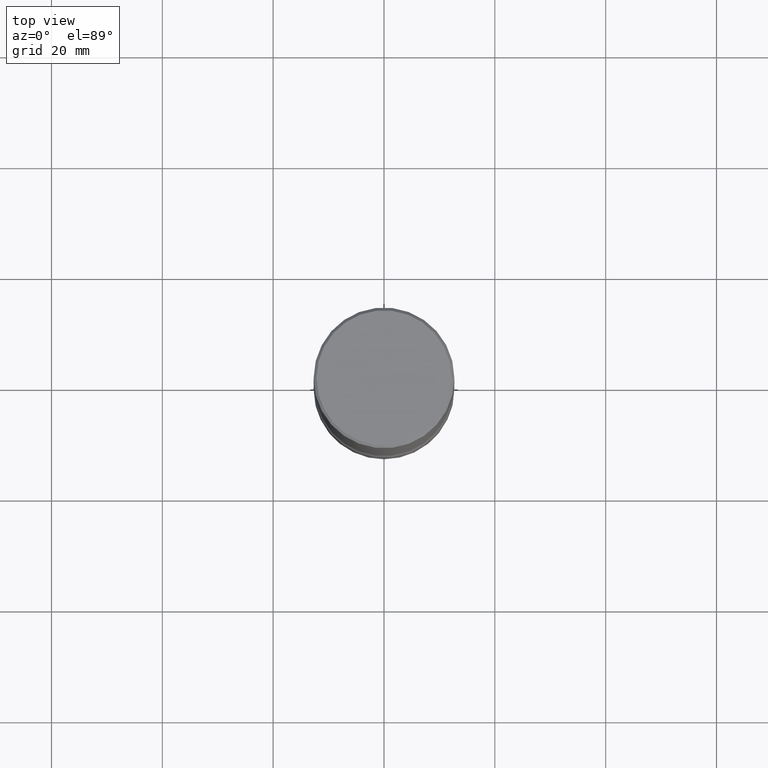
[diagram: clean part render]
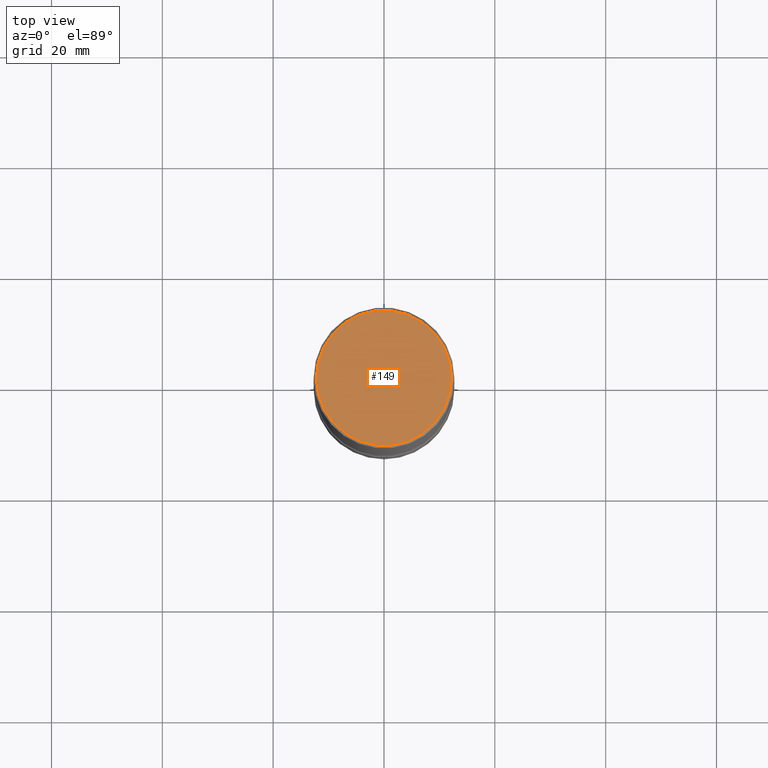
[diagram: same view with one face highlighted and labeled with its STEP entity id]
A machine part, top view. The second image highlights one B-rep face of the part: STEP entity #149.
In plain terms, the highlighted planar face has unit normal (-0, 0, 1).
Its self-contained STEP definition (entity closure, byte-faithful):
#14 = CIRCLE ( 'NONE', #545, 0.4799999999999995937 ) ;
#36 = VERTEX_POINT ( 'NONE', #518 ) ;
#38 = EDGE_CURVE ( 'NONE', #286, #36, #285, .T. ) ;
#47 = DIRECTION ( 'NONE',  ( 2.445468806185136597E-29, -3.491481338843145583E-15, -1.000000000000000000 ) ) ;
#62 = PLANE ( 'NONE',  #347 ) ;
#78 = FACE_OUTER_BOUND ( 'NONE', #548, .T. ) ;
#124 = ORIENTED_EDGE ( 'NONE', *, *, #38, .F. ) ;
#132 = ORIENTED_EDGE ( 'NONE', *, *, #441, .F. ) ;
#146 = AXIS2_PLACEMENT_3D ( 'NONE', #481, #47, #520 ) ;
#149 = ADVANCED_FACE ( 'NONE', ( #78 ), #62, .T. ) ;
#182 = CARTESIAN_POINT ( 'NONE',  ( 0.4799999999999995937, -3.396558832296480127E-15, 2.359727204893467688E-29 ) ) ;
#190 = DIRECTION ( 'NONE',  ( 2.445468806185136597E-29, -3.491481338843145583E-15, -1.000000000000000000 ) ) ;
#206 = DIRECTION ( 'NONE',  ( -2.438088387897960049E-29, 3.491481338843145188E-15, 1.000000000000000000 ) ) ;
#285 = CIRCLE ( 'NONE', #146, 0.4799999999999995937 ) ;
#286 = VERTEX_POINT ( 'NONE', #182 ) ;
#322 = CARTESIAN_POINT ( 'NONE',  ( 0.000000000000000000, 0.000000000000000000, 0.000000000000000000 ) ) ;
#347 = AXIS2_PLACEMENT_3D ( 'NONE', #457, #206, #385 ) ;
#361 = DIRECTION ( 'NONE',  ( -1.000000000000000000, 6.982962677686266711E-15, -4.876176775795935793E-29 ) ) ;
#385 = DIRECTION ( 'NONE',  ( 1.000000000000000000, -6.982962677686265922E-15, 4.876176775795935793E-29 ) ) ;
#441 = EDGE_CURVE ( 'NONE', #36, #286, #14, .T. ) ;
#457 = CARTESIAN_POINT ( 'NONE',  ( 3.351822085289404787E-15, 0.4799999999999995937, -1.669508273909557867E-15 ) ) ;
#481 = CARTESIAN_POINT ( 'NONE',  ( 0.000000000000000000, 0.000000000000000000, 0.000000000000000000 ) ) ;
#518 = CARTESIAN_POINT ( 'NONE',  ( -0.4799999999999995937, 3.351822085289405181E-15, -2.340564852382047163E-29 ) ) ;
#520 = DIRECTION ( 'NONE',  ( -1.000000000000000000, 6.982962677686266711E-15, -4.876176775795935793E-29 ) ) ;
#545 = AXIS2_PLACEMENT_3D ( 'NONE', #322, #190, #361 ) ;
#548 = EDGE_LOOP ( 'NONE', ( #132, #124 ) ) ;